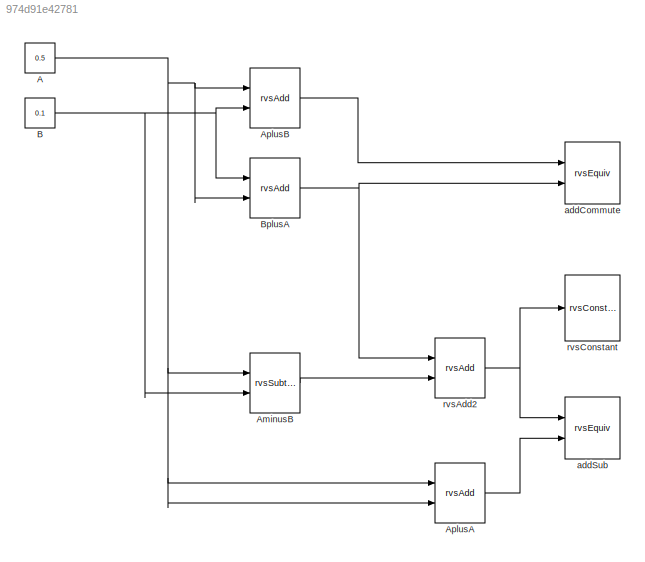
MODEL slx_974d91e42781
KIND model
CONFIG AbsTol = auto
CONFIG FixedStep = auto
CONFIG MaxStep = auto
CONFIG MinStep = auto
CONFIG RelTol = 1e-3
CONFIG SampleTimeConstraint = Unconstrained
CONFIG Solver = FixedStepDiscrete
CONFIG SolverMode = Auto
CONFIG SolverName = FixedStepDiscrete
CONFIG StartTime = 0.0
CONFIG StopTime = 10.0
BLOCK [Constant] A
  Value = 0.5
BLOCK [Reference] AminusB  REF=rvs/rvsSubtract  (lib defined in slx_4df59143a37a)
  Ports = [2, 1]
  SourceBlock = rvs/rvsSubtract
  SourceType = rvsSubtract
BLOCK [Reference] AplusA  REF=rvs/rvsAdd  (lib defined in slx_4df59143a37a)
  Ports = [2, 1]
  SourceBlock = rvs/rvsAdd
  SourceType = rvsAdd
BLOCK [Reference] AplusB  REF=rvs/rvsAdd  (lib defined in slx_4df59143a37a)
  Ports = [2, 1]
  SourceBlock = rvs/rvsAdd
  SourceType = rvsAdd
BLOCK [Constant] B
  Value = 0.1
BLOCK [Reference] BplusA  REF=rvs/rvsAdd  (lib defined in slx_4df59143a37a)
  Ports = [2, 1]
  SourceBlock = rvs/rvsAdd
  SourceType = rvsAdd
BLOCK [Reference] addCommute  REF=rvs/rvsEquiv  (lib defined in slx_4df59143a37a)
  Ports = [2]
  SourceBlock = rvs/rvsEquiv
  SourceType = rvsEquiv
BLOCK [Reference] addSub  REF=rvs/rvsEquiv  (lib defined in slx_4df59143a37a)
  Ports = [2]
  SourceBlock = rvs/rvsEquiv
  SourceType = rvsEquiv
BLOCK [Reference] rvsAdd2  REF=rvs/rvsAdd  (lib defined in slx_4df59143a37a)
  Ports = [2, 1]
  SourceBlock = rvs/rvsAdd
  SourceType = rvsAdd
BLOCK [Reference] rvsConstant  REF=rvs/rvsConstant  (lib defined in slx_4df59143a37a)
  Ports = [1]
  SourceBlock = rvs/rvsConstant
  SourceType = rvsConstant
NET A:1 -> AminusB:1, AplusA:1, AplusA:2, AplusB:1, BplusA:2
LINE AminusB:1 -> rvsAdd2:2
LINE AplusA:1 -> addSub:2
LINE AplusB:1 -> addCommute:1
NET B:1 -> AminusB:2, AplusB:2, BplusA:1
NET BplusA:1 -> addCommute:2, rvsAdd2:1
NET rvsAdd2:1 -> addSub:1, rvsConstant:1
note: NET lines group one-source signal fan-out (src -> all destinations, sorted); 1:1 wires keep LINE
